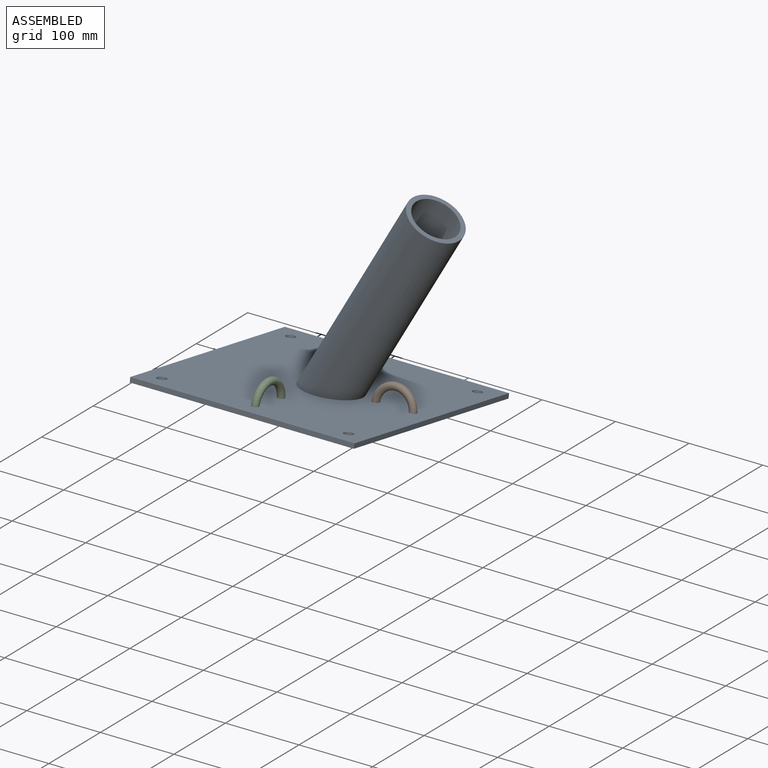
[diagram: assembled view]
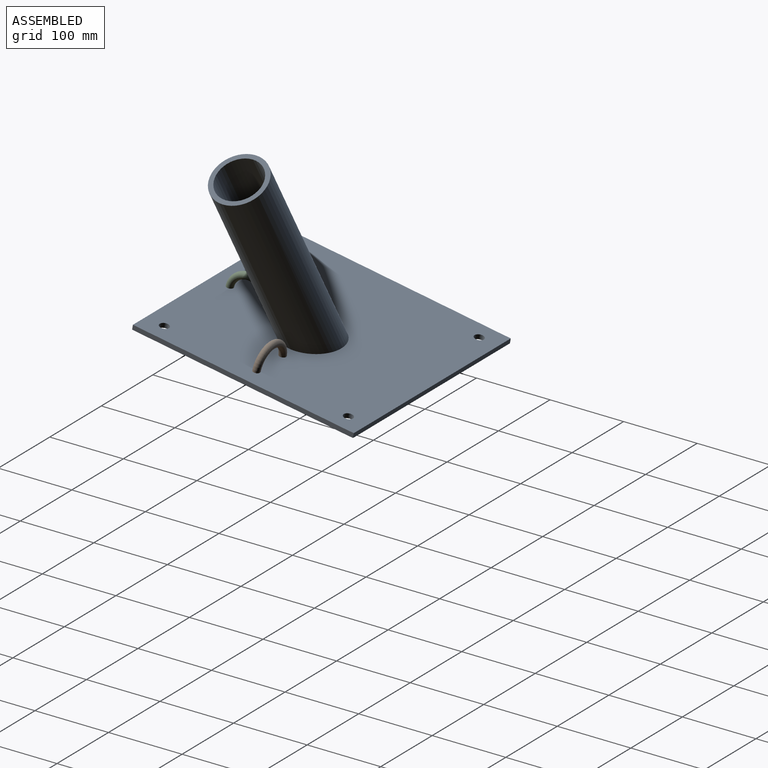
[diagram: assembled view, second angle]
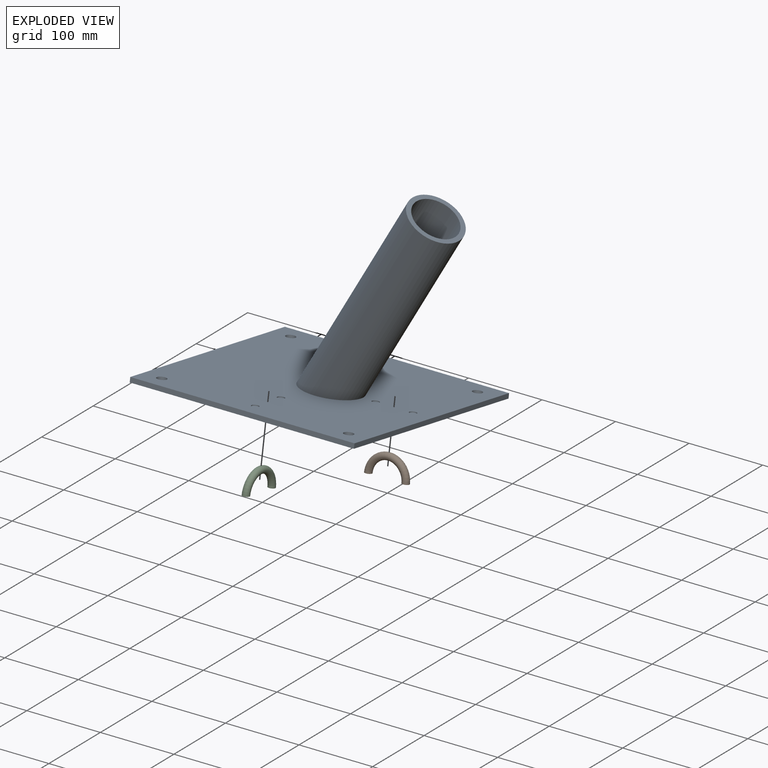
[diagram: exploded view]
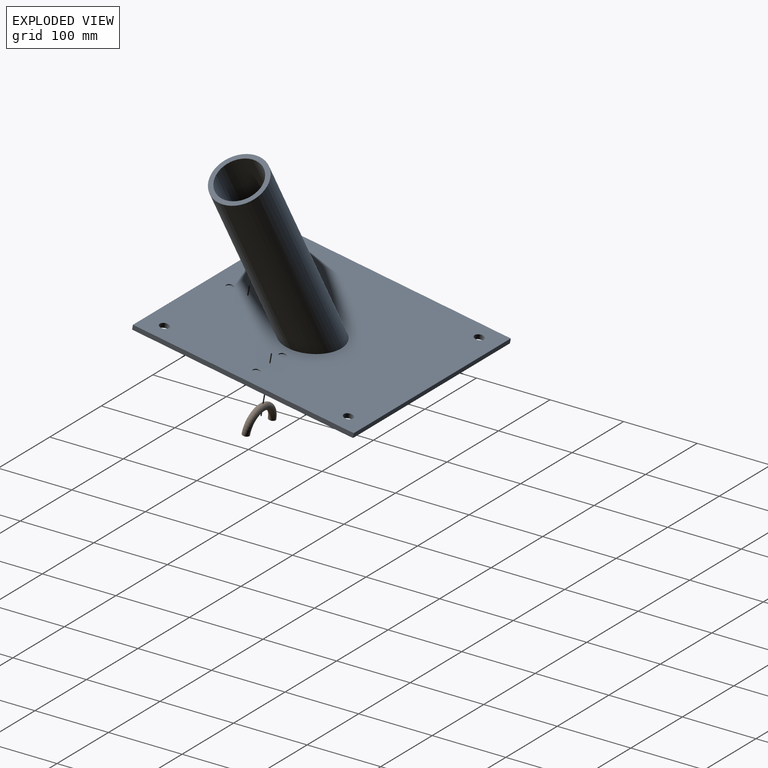
[diagram: exploded view, second angle]
ASSEMBLY  parts=3 mates=2
PART A: 22 faces, bbox 343.4x301.9x303 mm
  f0: plane 304.8x6.25mm, normal (0,0.98,-0.17), area 1935.5mm2, adj f1,f3,f4,f5
  f1: plane 301.27x59.18mm, normal (-1,0,0), area 1935.5mm2, adj f0,f2,f4,f5
  f2: plane 304.8x6.25mm, normal (0,-0.98,0.17), area 1935.5mm2, adj f1,f3,f4,f5
  f3: plane 301.27x59.18mm, normal (1,0,0), area 1935.5mm2, adj f0,f2,f4,f5
  f4: plane 305.43x300.8mm, normal (0,0.17,0.98), area 87200.5mm2, adj f0,f1,f2,f3,f7,f10,f12,f14
  f5: plane 304.8x300.17mm, normal (0,-0.17,-0.98), area 92396.3mm2, adj f0,f1,f2,f3,f18,f19,f20,f21
  f6: cylinder r=30.16mm len=292.68mm, axis (-0.5,0,-0.87), area 53944.8mm2, adj f8,f9
  f7: cylinder r=36.51mm len=302.4mm, axis (-0.5,0,-0.87), area 65301.1mm2, adj f4,f8
  f8: plane 73.03x63.24mm, normal (0.5,0,0.87), area 1330.1mm2, adj f6,f7
  f9: plane 70.45x60.85mm, normal (0,0.17,0.98), area 3351.2mm2, adj f6
  f10: cylinder r=4.76mm len=9.6mm, axis (0,0.17,0.98), area 38mm2, adj f4,f11
  f11: plane 9.53x9.38mm, normal (0,0.17,0.98), area 71.3mm2, adj f10
  f12: cylinder r=4.76mm len=9.6mm, axis (0,0.17,0.98), area 38mm2, adj f4,f13
  f13: plane 9.53x9.38mm, normal (0,0.17,0.98), area 71.3mm2, adj f12
  f14: cylinder r=4.76mm len=9.6mm, axis (0,0.17,0.98), area 38mm2, adj f4,f15
  f15: plane 9.53x9.38mm, normal (0,0.17,0.98), area 71.3mm2, adj f14
  f16: cylinder r=4.76mm len=9.6mm, axis (0,0.17,0.98), area 38mm2, adj f4,f17
  f17: plane 9.53x9.38mm, normal (0,0.17,0.98), area 71.3mm2, adj f16
  f18: cylinder r=6.35mm len=13.61mm, axis (0,0.17,0.98), area 253.4mm2, adj f4,f5
  f19: cylinder r=6.35mm len=13.61mm, axis (0,0.17,0.98), area 253.4mm2, adj f4,f5
  f20: cylinder r=6.35mm len=13.61mm, axis (0,0.17,0.98), area 253.4mm2, adj f4,f5
  f21: cylinder r=6.35mm len=13.61mm, axis (0,0.17,0.98), area 253.4mm2, adj f4,f5
PART B: 3 faces, bbox 65.3x9.5x32.6 mm
  f0: torus R=25.4mm, axis (0,-1,0), area 2387.8mm2, adj f1,f2
  f1: plane 9.53x9.53mm, normal (0,0,-1), area 71.3mm2, adj f0
  f2: plane 9.53x9.53mm, normal (0,0,-1), area 71.3mm2, adj f0
PART C: same geometry as B
PLACE A at identity
PLACE B rot(axis=(-1,0,0),10deg) t=(88.9,0.88,5)mm
PLACE C rot(axis=(-0.09,0.09,0.99),90.4deg) t=(-12.7,-99.17,22.65)mm
MATE fastened B.f1 <-> A.f16  axis (0,-0.17,-0.98) through (114.3,0.88,5)mm
MATE fastened C.f2 <-> A.f10  axis (0,-0.17,-0.98) through (-12.7,-124.19,27.06)mm
